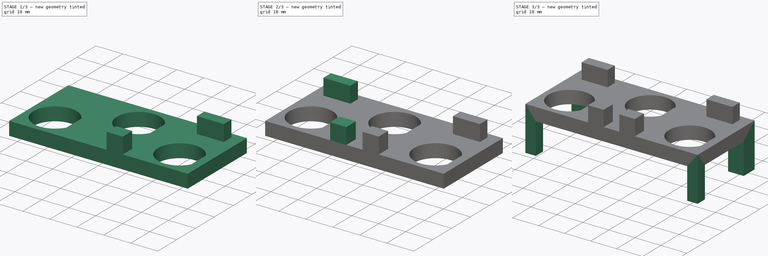
[diagram: build sequence overview — one tinted view per stage of 3, left to right]
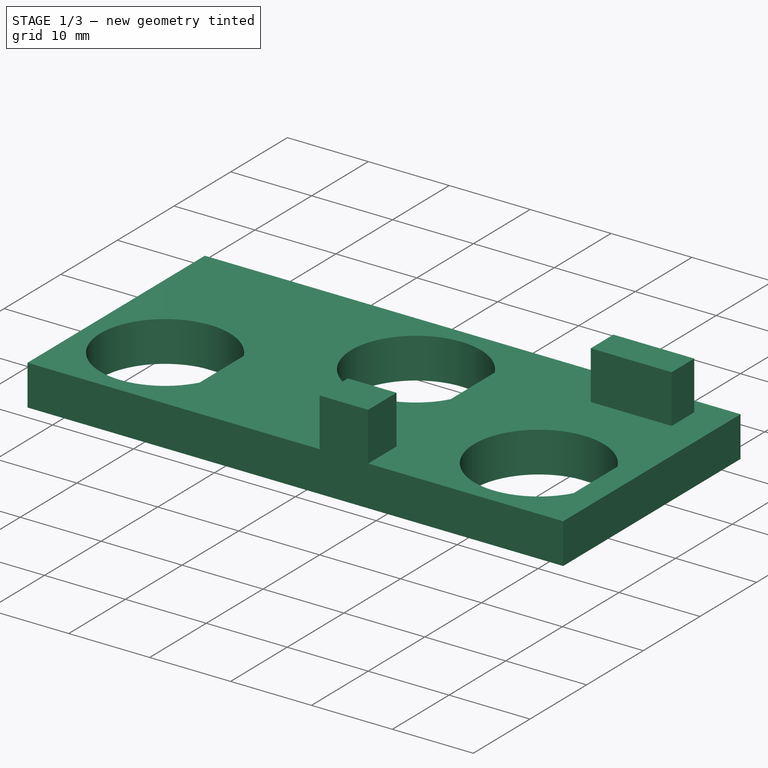
[diagram: stage 1 of 3 — iso view after this stage's code; geometry added in this stage tinted green]
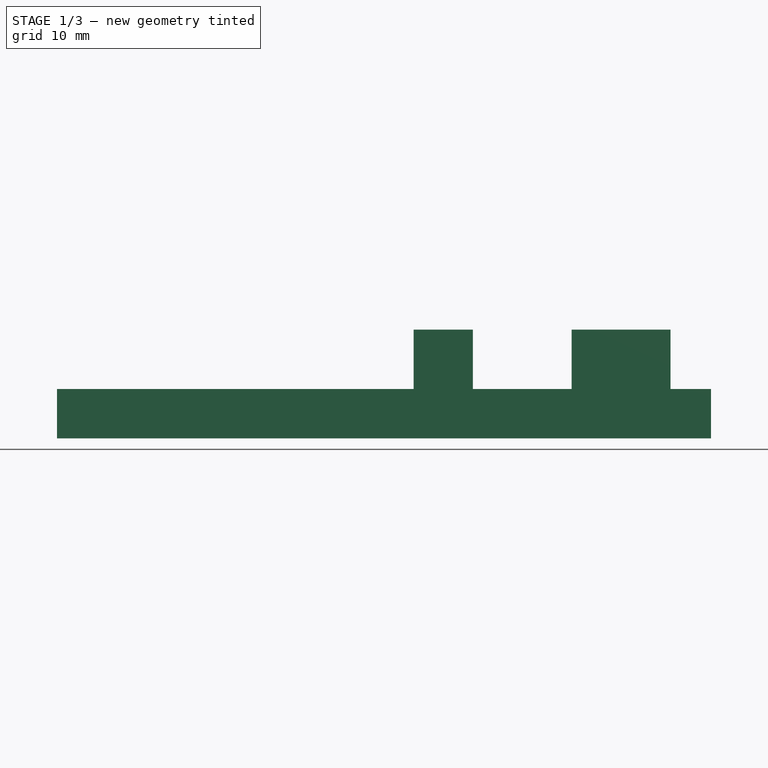
[diagram: stage 1 of 3 — front view after this stage's code; geometry added in this stage tinted green]
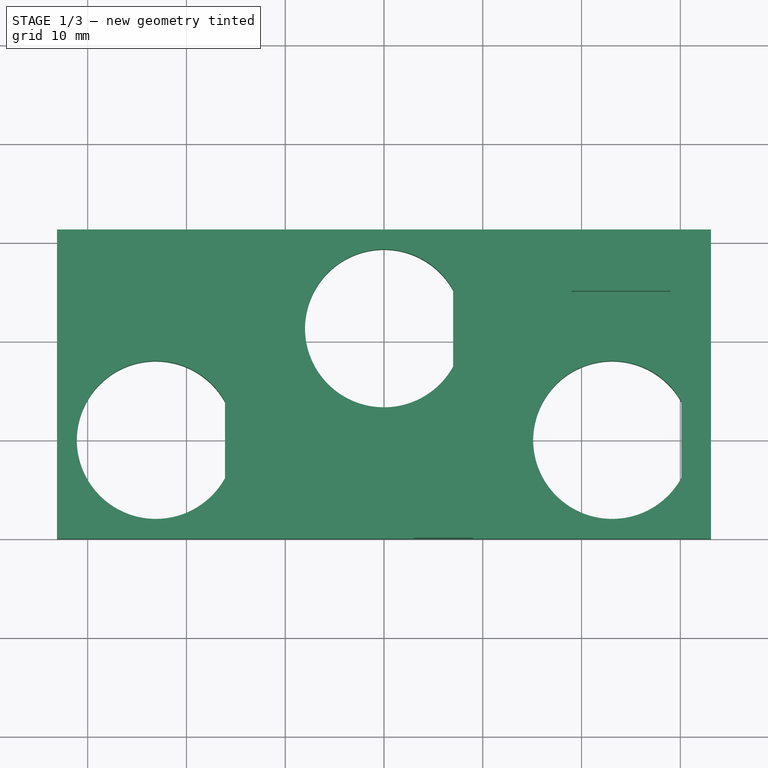
[diagram: stage 1 of 3 — top view after this stage's code; geometry added in this stage tinted green]
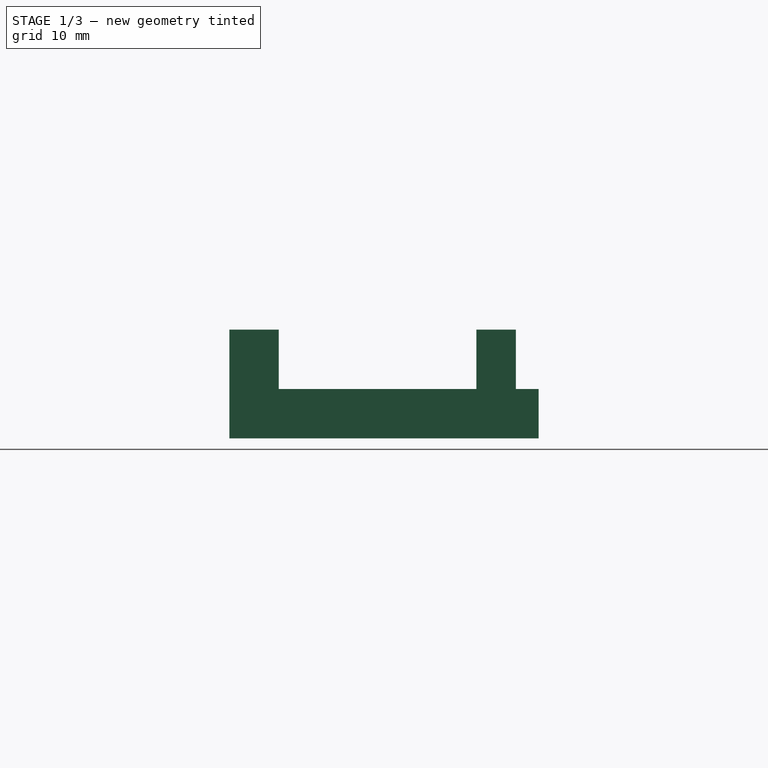
[diagram: stage 1 of 3 — right view after this stage's code; geometry added in this stage tinted green]
FCSTD DOCUMENT  (FreeCAD 1.0R39319 (Git))
Label: solder-helper
License: All rights reserved
LicenseURL: https://en.wikipedia.org/wiki/All_rights_reserved
objects: Sketcher::SketchObject×3, PartDesign::Pad×3, PartDesign::Mirrored×2, PartDesign::Body×1, App::Part×1
note: 20 computed .brp shape members not serialized (recipe doc carries the construction recipe); baked Part::Feature solids carry a one-line shape summary decoded from their .brp

FEATURE [Sketcher::SketchObject] Sketch
  ArcFitTolerance = 1e-06
  AttachmentSupport = -> [XY_Plane001]
  FullyConstrained = true
  MakeInternals = false
  MapMode = 5
  sketch-geometry (14):
    g0: LineSegment StartX=-33.1 StartY=31.3 StartZ=0 EndX=-33.1 EndY=0 EndZ=0
    g1: LineSegment StartX=-33.1 StartY=0 StartZ=0 EndX=33.1 EndY=0 EndZ=0
    g2: LineSegment StartX=33.1 StartY=0 StartZ=0 EndX=33.1 EndY=31.3 EndZ=0
    g3: LineSegment StartX=33.1 StartY=31.3 StartZ=0 EndX=-33.1 EndY=31.3 EndZ=0
    g4: LineSegment [constr] StartX=-29 StartY=29 StartZ=0 EndX=-29 EndY=0 EndZ=0
    g5: LineSegment [constr] StartX=-29 StartY=0 StartZ=0 EndX=29 EndY=0 EndZ=0
    g6: LineSegment [constr] StartX=29 StartY=0 StartZ=0 EndX=29 EndY=29 EndZ=0
    g7: LineSegment [constr] StartX=29 StartY=29 StartZ=0 EndX=-29 EndY=29 EndZ=0
    g8: ArcOfCircle CenterX=-23.1 CenterY=10 CenterZ=0 NormalX=0 NormalY=0 NormalZ=1 AngleXU=0 Radius=8 StartAngle=0.505361 EndAngle=5.77782
    g9: LineSegment StartX=-16.1 StartY=13.873 StartZ=0 EndX=-16.1 EndY=6.12702 EndZ=0
    g10: ArcOfCircle CenterX=23.1 CenterY=10 CenterZ=0 NormalX=0 NormalY=0 NormalZ=1 AngleXU=0 Radius=8 StartAngle=0.505361 EndAngle=5.77782
    g11: LineSegment StartX=30.1 StartY=13.873 StartZ=0 EndX=30.1 EndY=6.12702 EndZ=0
    g12: ArcOfCircle CenterX=0 CenterY=21.3 CenterZ=0 NormalX=0 NormalY=0 NormalZ=1 AngleXU=0 Radius=8 StartAngle=0.505361 EndAngle=5.77782
    g13: LineSegment StartX=7 StartY=25.173 StartZ=0 EndX=7 EndY=17.427 EndZ=0
  constraints (42):
    c: Coincident(g0,g1)
    c: Coincident(g1,g2)
    c: Coincident(g2,g3)
    c: Coincident(g3,g0)
    c: Vertical(g0)
    c: Horizontal(g1)
    c: Symmetric(g0,g2,g-2)
    c: Coincident(g4,g5)
    c: Coincident(g5,g6)
    c: Coincident(g6,g7)
    c: Coincident(g7,g4)
    c: Vertical(g4)
    c: Vertical(g6)
    c: Horizontal(g7)
    c: DistanceX(g7,g7) = 58
    c: DistanceY(g6,g6) = 29
    c: PointOnObject(g5,g-1)
    c: Symmetric(g5,g4,g-2)
    c: Vertical(g2)
    c: PointOnObject(g1,g-1)
    c: Radius(g8) = 8
    c: Coincident(g9,g8)
    c: Coincident(g9,g8)
    c: Vertical(g9)
    c: DistanceX(g8,g8) = 7
    c: Radius(g10) = 8
    c: Coincident(g11,g10)
    c: Coincident(g11,g10)
    c: Vertical(g11)
    c: DistanceX(g-1,g10) = 23.1
    c: DistanceX(g10,g10) = 7
    c: Symmetric(g8,g10,g-2)
    c: Radius(g12) = 8
    c: Coincident(g13,g12)
    c: Coincident(g13,g12)
    c: Vertical(g13)
    c: DistanceX(g12,g12) = 7
    c: PointOnObject(g12,g-2)
    c: DistanceY(g10,g12) = 11.3
    c: DistanceY(g12,g2) = 10
    c: DistanceY(g1,g10) = 10
    c: DistanceX(g0,g8) = 10
FEATURE [PartDesign::Pad] Pad
  Direction = (0,0,1)
  Length = 5
  Length2 = 10
  Profile = -> Sketch
  ReferenceAxis = -> Sketch [N_Axis]
  Refine = true
  Suppressed = false
  Type = 0
FEATURE [Sketcher::SketchObject] Sketch001
  ArcFitTolerance = 1e-06
  AttachmentSupport = -> [Pad]
  FullyConstrained = true
  MakeInternals = false
  MapMode = 5
  Placement = pos=(0,0,5) rot=(0,0,1;0rad)
  sketch-geometry (12):
    g0: LineSegment [constr] StartX=-29 StartY=29 StartZ=0 EndX=-29 EndY=0 EndZ=0
    g1: LineSegment [constr] StartX=-29 StartY=0 StartZ=0 EndX=29 EndY=0 EndZ=0
    g2: LineSegment [constr] StartX=29 StartY=0 StartZ=0 EndX=29 EndY=29 EndZ=0
    g3: LineSegment [constr] StartX=29 StartY=29 StartZ=0 EndX=-29 EndY=29 EndZ=0
    g4: LineSegment StartX=29 StartY=29 StartZ=0 EndX=19 EndY=29 EndZ=0
    g5: LineSegment StartX=19 StartY=29 StartZ=0 EndX=19 EndY=25 EndZ=0
    g6: LineSegment StartX=19 StartY=25 StartZ=0 EndX=29 EndY=25 EndZ=0
    g7: LineSegment StartX=29 StartY=25 StartZ=0 EndX=29 EndY=29 EndZ=0
    g8: LineSegment StartX=3 StartY=0 StartZ=0 EndX=9 EndY=0 EndZ=0
    g9: LineSegment StartX=9 StartY=0 StartZ=0 EndX=9 EndY=5 EndZ=0
    g10: LineSegment StartX=9 StartY=5 StartZ=0 EndX=3 EndY=5 EndZ=0
    g11: LineSegment StartX=3 StartY=5 StartZ=0 EndX=3 EndY=0 EndZ=0
  constraints (34):
    c: Coincident(g0,g1)
    c: Coincident(g1,g2)
    c: Coincident(g2,g3)
    c: Coincident(g3,g0)
    c: Vertical(g0)
    c: Vertical(g2)
    c: Horizontal(g1)
    c: PointOnObject(g1,g-1)
    c: Symmetric(g2,g0,g-2)
    c: DistanceX(g3,g3) = 58
    c: DistanceY(g2,g2) = 29
    c: Coincident(g4,g5)
    c: Coincident(g5,g6)
    c: Coincident(g6,g7)
    c: Coincident(g7,g4)
    c: Horizontal(g4)
    c: Horizontal(g6)
    c: Vertical(g5)
    c: Vertical(g7)
    c: Coincident(g4,g2)
    c: DistanceX(g6,g6) = 10
    c: DistanceY(g7,g7) = 4
    c: Coincident(g8,g9)
    c: Coincident(g9,g10)
    c: Coincident(g10,g11)
    c: Coincident(g11,g8)
    c: Horizontal(g8)
    c: Horizontal(g10)
    c: Vertical(g9)
    c: Vertical(g11)
    c: PointOnObject(g8,g1)
    c: DistanceX(g-1,g8) = 3
    c: DistanceX(g10,g10) = 6
    c: DistanceY(g9,g9) = 5
FEATURE [PartDesign::Pad] Pad001
  BaseFeature = -> Pad
  Direction = (0,0,1)
  Length = 6
  Length2 = 10
  Profile = -> Sketch001
  ReferenceAxis = -> Sketch001 [N_Axis]
  Refine = true
  Suppressed = false
  Type = 0
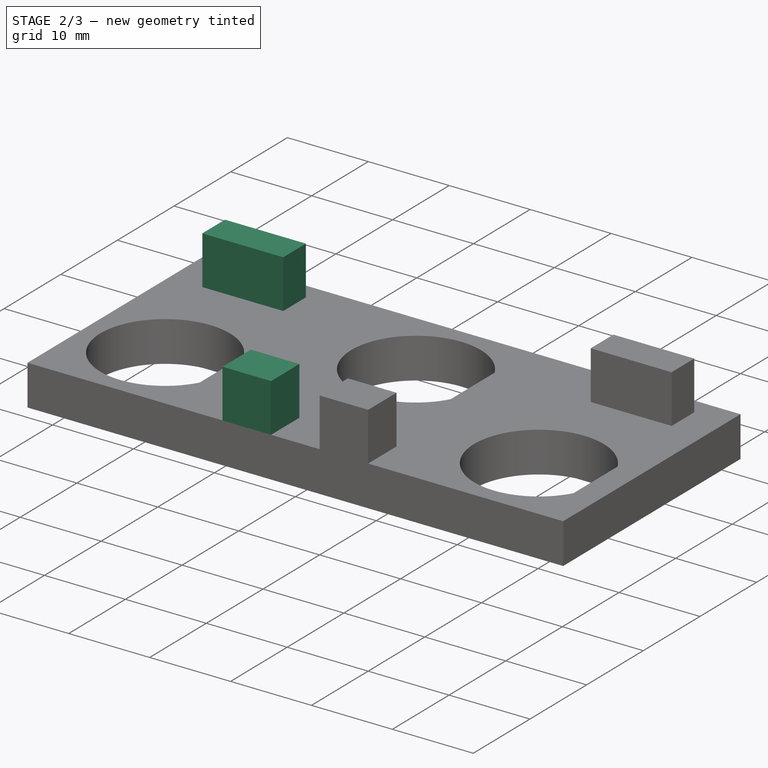
[diagram: stage 2 of 3 — iso view after this stage's code; geometry added in this stage tinted green]
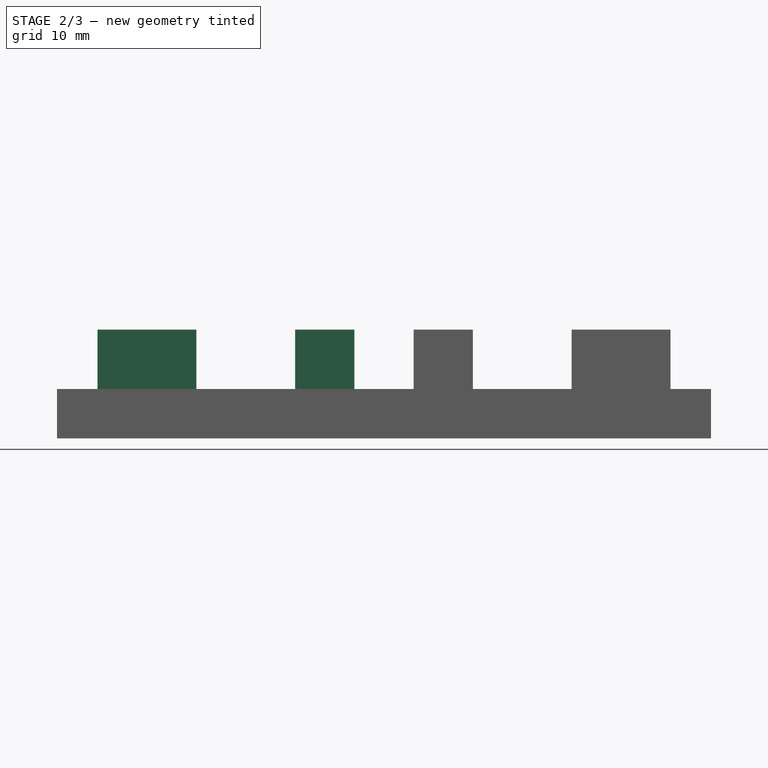
[diagram: stage 2 of 3 — front view after this stage's code; geometry added in this stage tinted green]
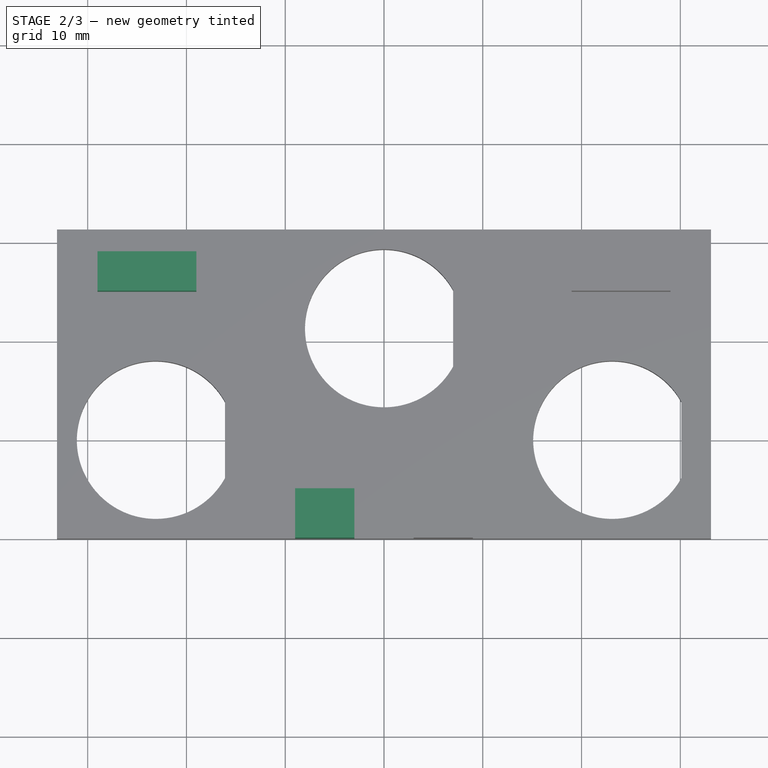
[diagram: stage 2 of 3 — top view after this stage's code; geometry added in this stage tinted green]
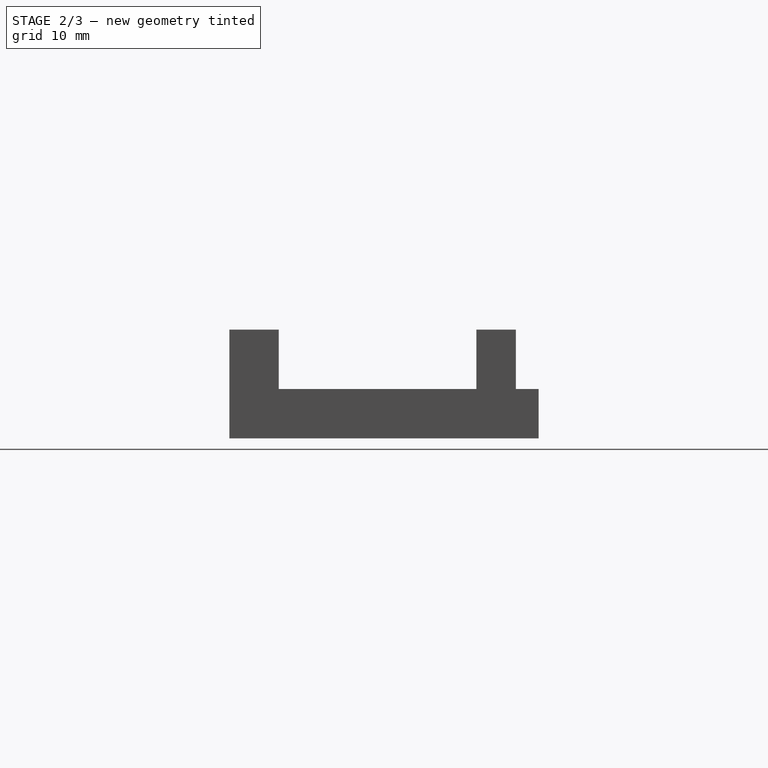
[diagram: stage 2 of 3 — right view after this stage's code; geometry added in this stage tinted green]
FEATURE [PartDesign::Mirrored] Mirrored
  BaseFeature = -> Pad001
  MirrorPlane = -> Sketch001 [V_Axis]
  Originals = -> [Pad001]
  Refine = true
  Suppressed = false
  TransformMode = 0
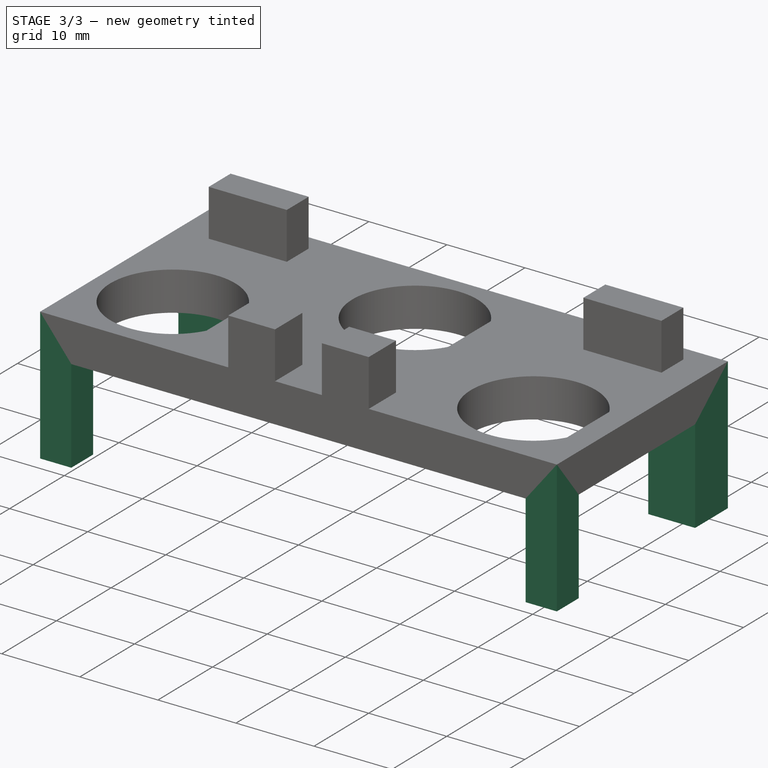
[diagram: stage 3 of 3 — iso view after this stage's code; geometry added in this stage tinted green]
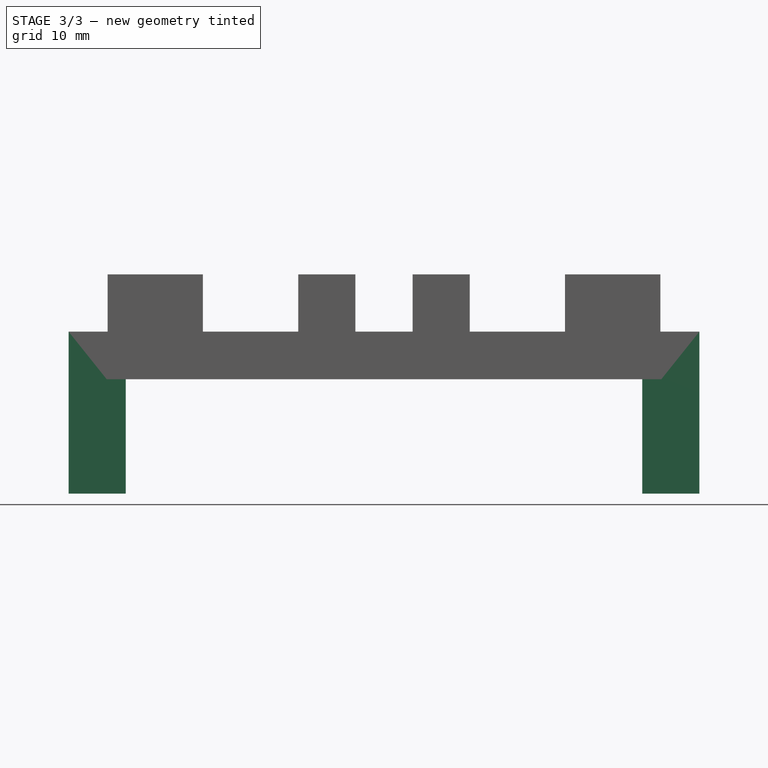
[diagram: stage 3 of 3 — front view after this stage's code; geometry added in this stage tinted green]
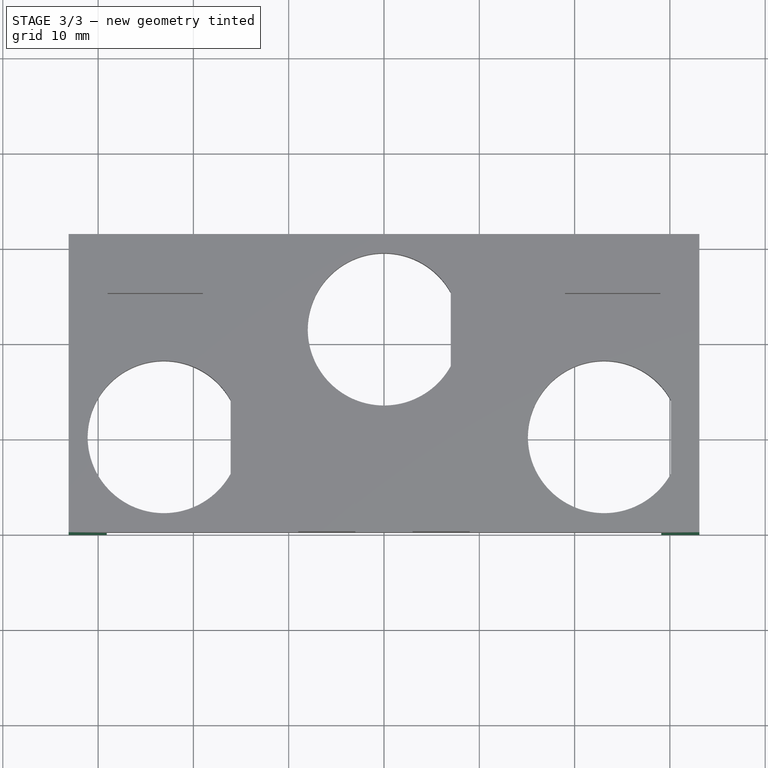
[diagram: stage 3 of 3 — top view after this stage's code; geometry added in this stage tinted green]
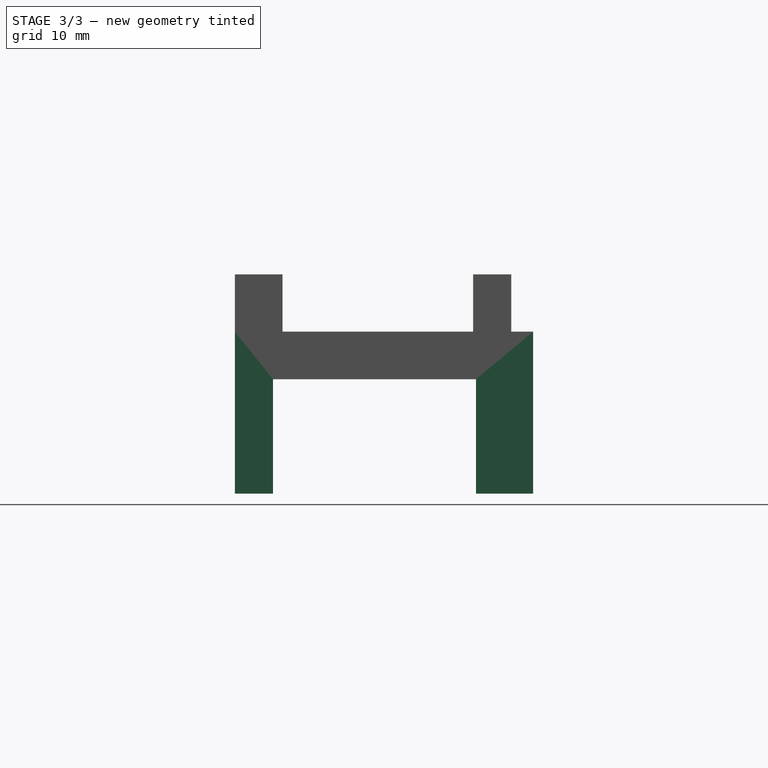
[diagram: stage 3 of 3 — right view after this stage's code; geometry added in this stage tinted green]
FEATURE [Sketcher::SketchObject] Sketch002
  ArcFitTolerance = 1e-06
  AttachmentSupport = -> [Mirrored]
  ExternalGeometry = -> [Mirrored]
  FullyConstrained = true
  MakeInternals = false
  MapMode = 5
  Placement = pos=(0,0,0) rot=(1,0,0;3.14159rad)
  sketch-geometry (8):
    g0: LineSegment StartX=-33.1 StartY=0 StartZ=0 EndX=-33.1 EndY=-4 EndZ=0
    g1: LineSegment StartX=-33.1 StartY=-4 StartZ=0 EndX=-29.1 EndY=-4 EndZ=0
    g2: LineSegment StartX=-29.1 StartY=-4 StartZ=0 EndX=-29.1 EndY=0 EndZ=0
    g3: LineSegment StartX=-29.1 StartY=0 StartZ=0 EndX=-33.1 EndY=0 EndZ=0
    g4: LineSegment StartX=-33.1 StartY=-31.3 StartZ=0 EndX=-27.1 EndY=-31.3 EndZ=0
    g5: LineSegment StartX=-27.1 StartY=-31.3 StartZ=0 EndX=-27.1 EndY=-25.3 EndZ=0
    g6: LineSegment StartX=-27.1 StartY=-25.3 StartZ=0 EndX=-33.1 EndY=-25.3 EndZ=0
    g7: LineSegment StartX=-33.1 StartY=-25.3 StartZ=0 EndX=-33.1 EndY=-31.3 EndZ=0
  constraints (22):
    c: Coincident(g0,g1)
    c: Coincident(g1,g2)
    c: Coincident(g2,g3)
    c: Coincident(g3,g0)
    c: Vertical(g0)
    c: Vertical(g2)
    c: Horizontal(g1)
    c: Horizontal(g3)
    c: Coincident(g0,g-3)
    c: DistanceX(g1,g1) = 4
    c: DistanceY(g2,g2) = 4
    c: Coincident(g4,g5)
    c: Coincident(g5,g6)
    c: Coincident(g6,g7)
    c: Coincident(g7,g4)
    c: Horizontal(g4)
    c: Horizontal(g6)
    c: Vertical(g5)
    c: Vertical(g7)
    c: Coincident(g4,g-4)
    c: DistanceX(g6,g6) = 6
    c: DistanceY(g5,g5) = 6
FEATURE [PartDesign::Pad] Pad002
  BaseFeature = -> Mirrored
  Direction = (0,0,-1)
  Length = 12
  Length2 = 10
  Profile = -> Sketch002
  ReferenceAxis = -> Sketch002 [N_Axis]
  Refine = true
  Suppressed = false
  Type = 0
FEATURE [PartDesign::Mirrored] Mirrored001
  BaseFeature = -> Pad002
  MirrorPlane = -> Sketch002 [V_Axis]
  Originals = -> [Pad002]
  Refine = true
  Suppressed = false
  TransformMode = 0
FEATURE [PartDesign::Body] Body
  AllowCompound = false
  Group = -> [Sketch,Pad,Sketch001,Pad001,Mirrored,Sketch002,Pad002,Mirrored001]
  Origin = -> Origin001
  Tip = -> Mirrored001
FEATURE [App::Part] Part
  Group = -> [Body]
  Origin = -> Origin
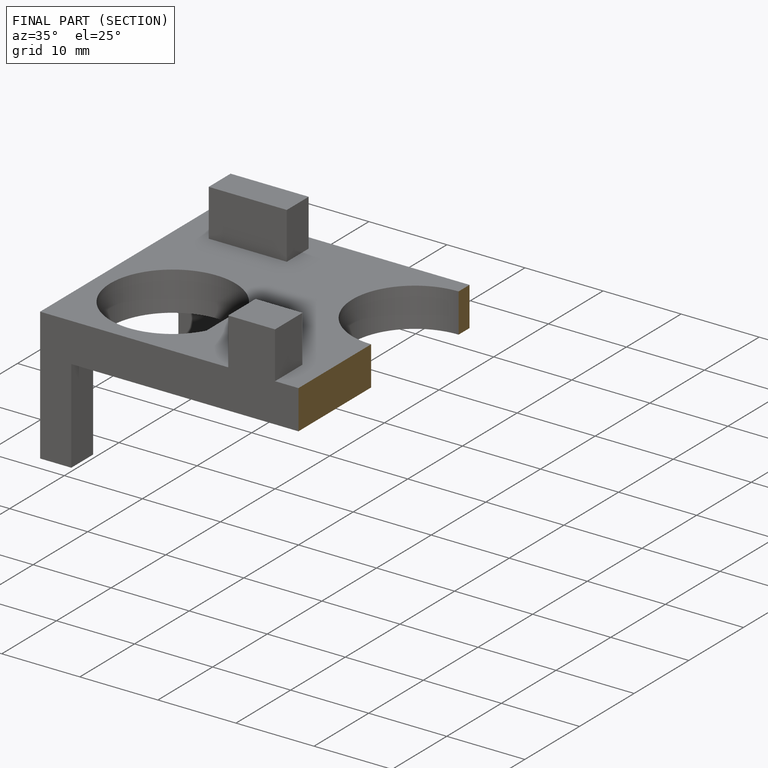
[diagram: finished part — half-section view (interior)]
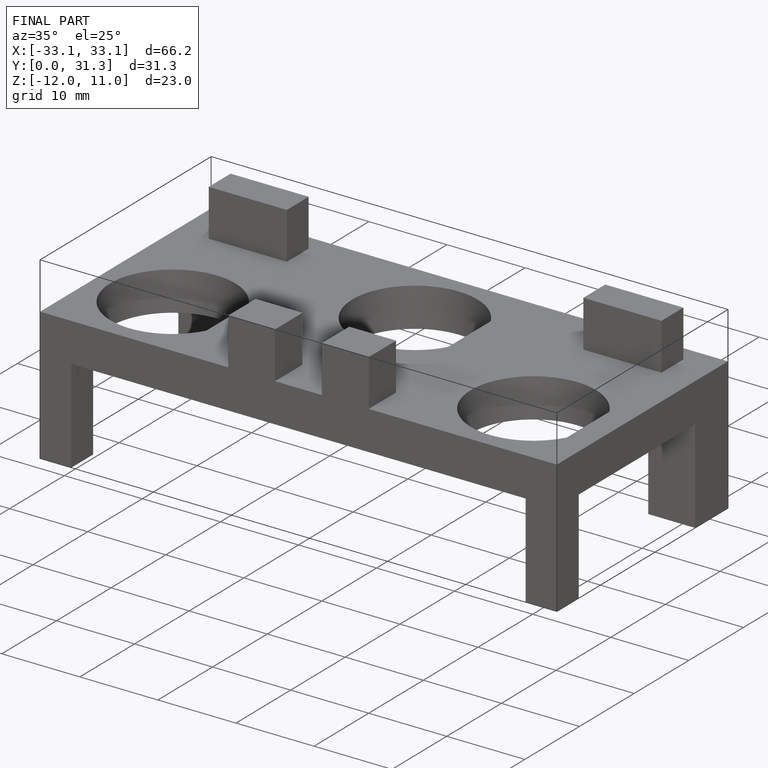
[diagram: finished part — iso view with bounding-box wireframe]
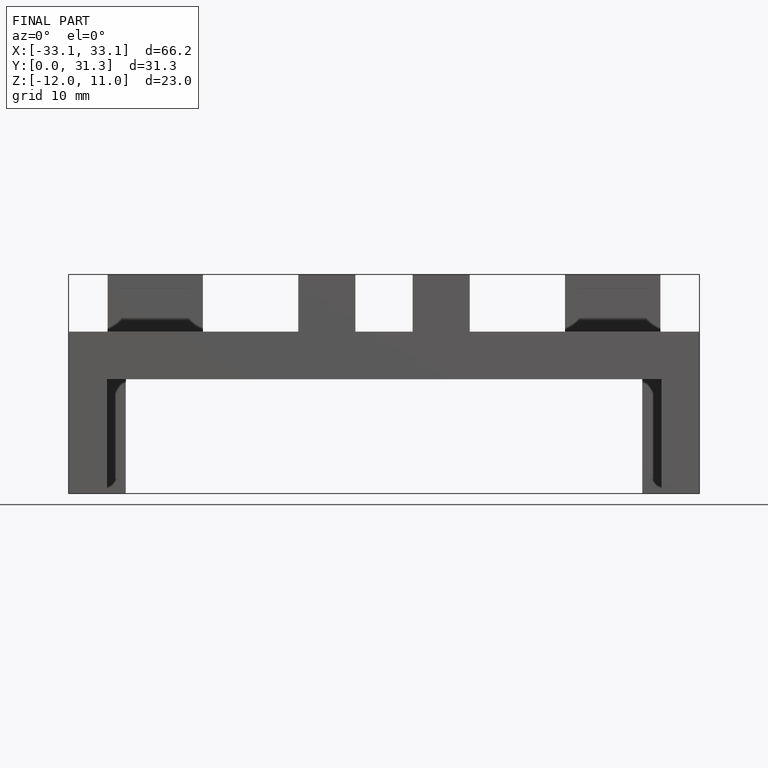
[diagram: finished part — front view with bounding-box wireframe]
